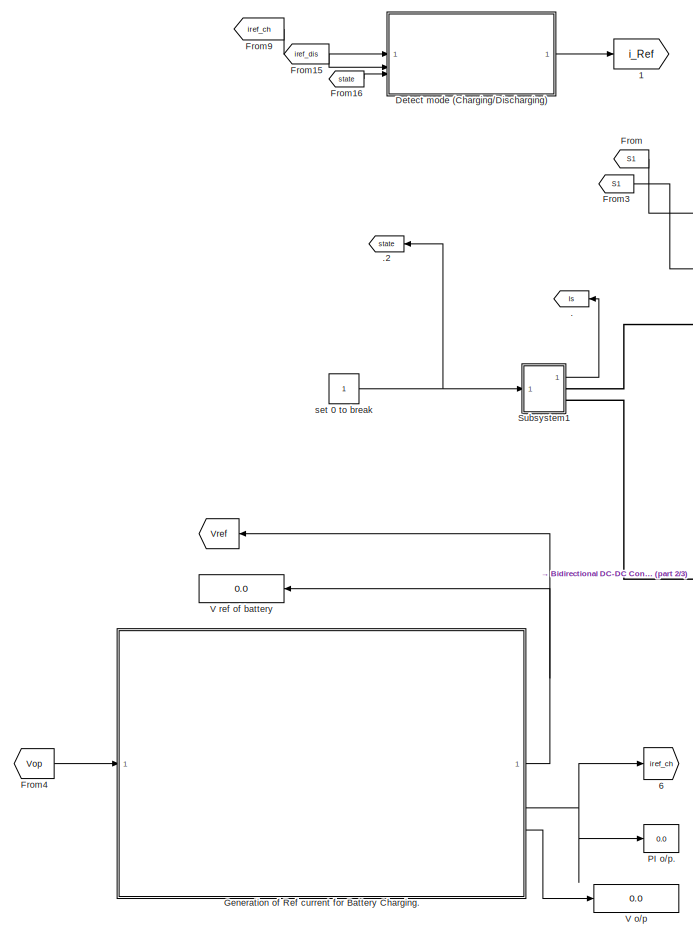
[diagram: root canvas - part 1/3, left side, full height]
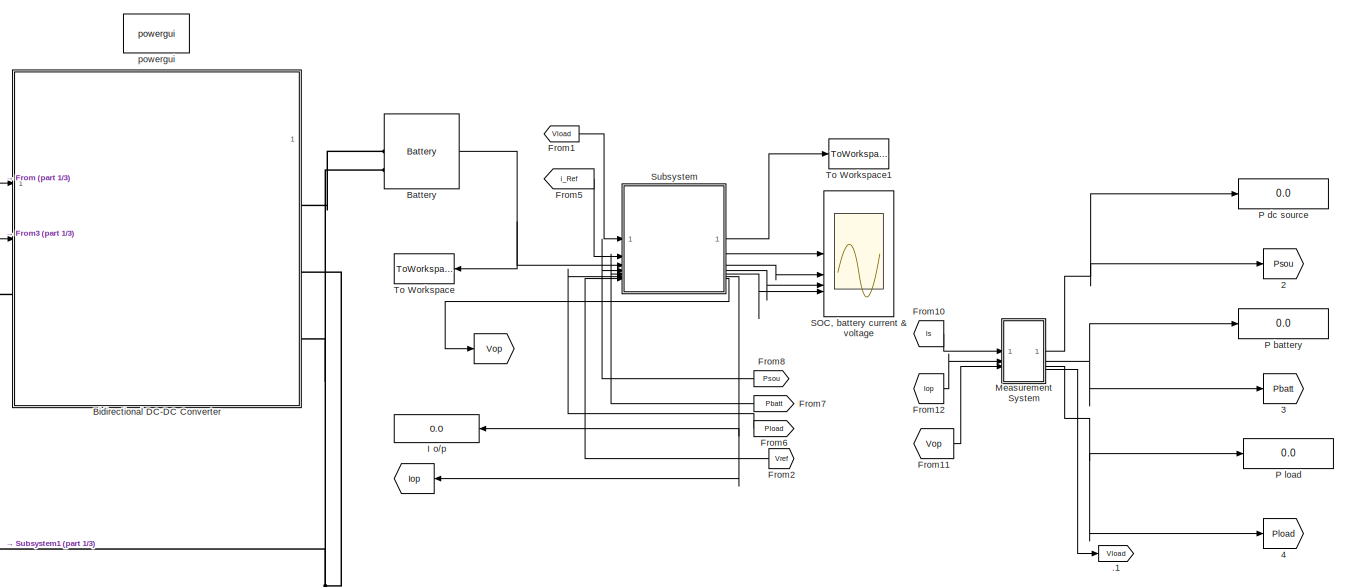
[diagram: root canvas - part 2/3, central region]
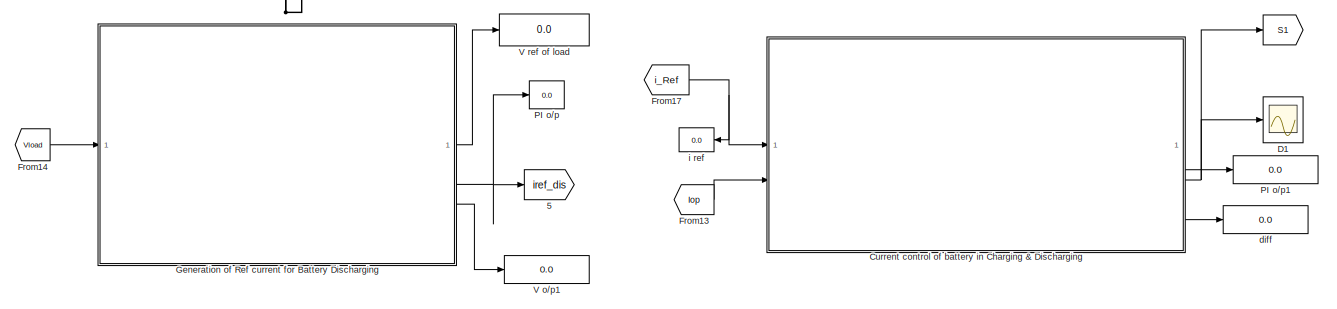
[diagram: root canvas - part 3/3, bottom right region]
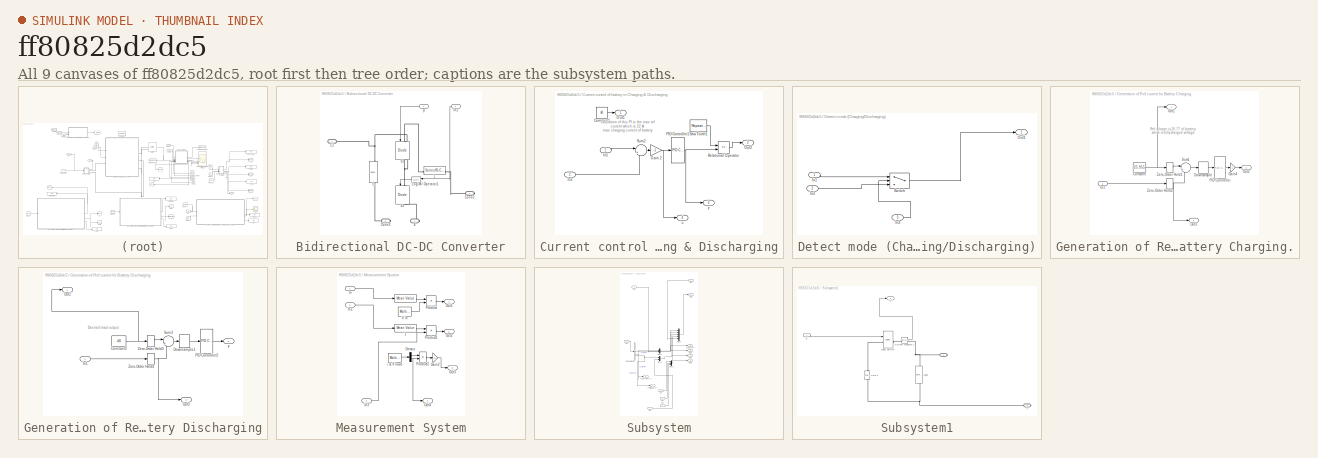
[diagram: thumbnail index - all 9 canvases of the model, root first then tree order]
MODEL slx_ff80825d2dc5
KIND model
CONFIG AbsTol = auto
CONFIG EnableMultiTasking = on
CONFIG FixedStep = 5e-6
CONFIG MaxStep = 50e-6
CONFIG MinStep = auto
CONFIG RelTol = 1e-4
CONFIG SampleTimeConstraint = Unconstrained
CONFIG SolverName = ode23s
CONFIG StartTime = 0.0
CONFIG StopTime = 10
WORKSPACE source: mxarray member
WORKSPACE Fs = 10000
WORKSPACE Fsw = 10000
BLOCK [Goto]     
  GotoTag = Vop
BLOCK [Goto]      
  GotoTag = Vref
BLOCK [Goto]          
  GotoTag = Iop
BLOCK [Goto]                                   
  GotoTag = S1
BLOCK [Goto]     1
  GotoTag = i_Ref
BLOCK [Goto]     2
  GotoTag = Psou
BLOCK [Goto]     3
  GotoTag = Pbatt
BLOCK [Goto]     4
  GotoTag = Pload
BLOCK [Goto]     5
  GotoTag = iref_dis
BLOCK [Goto]     6
  GotoTag = iref_ch
BLOCK [Scope]    D1
  ActiveDisplayYMaximum = 1.125
  ActiveDisplayYMinimum = -0.125
  DataLoggingDecimateData = on
  DataLoggingDecimation = 1
  DataLoggingSaveFormat = Array
  DataLoggingVariableName = VVI
  Floating = off
  GraphicalSettings = {"GraphicalSettings":{"LegacySettings":true,"Style":{"AxesScalingProperties":{"ScaleAxesLimitsAtStop":false},"Style":{"AxesColor":"[0 0 0]","ChannelNames":[""],"ColorOrder":"[1 1 0.0666666666666667;0.0745098039215686 0.623529411764706 1;1 0.411764705882353 0.16078431372549;0.392156862745098 0.831372549019608 0.0745098039215686;0.717647058823529 0.274509803921569 1;0.0588235294117647 1 1;1 0.074509...<+451ch>
  MultipleDisplayCache = [{"MaxYLimMag":1.125,"MaxYLimReal":1.125,"MinYLimMag":0,"MinYLimReal":-0.125,"PlotAsMagnitudePhase":false,"ShowGrid":true,"ShowLegend":false,"Title":"%<SignalLabel>","YLabel":""}]
  NumInputPorts = 1
  TimeSpan = 0.01960030745580332
  WasSavedAsWebScope = on
BLOCK [Goto] .
  GotoTag = Is
BLOCK [Goto] .1
  GotoTag = Vload
BLOCK [Goto] .2
  GotoTag = state
BLOCK [Reference] Battery  REF=spsBatteryLib/Battery
  LibrarySourceBlock = electricdrivelib/Extra Sources/Battery
  SourceBlock = spsBatteryLib/Battery
  SourceType = Battery
BLOCK [SubSystem] Bidirectional DC-DC Converter
BLOCK [Reference] Bidirectional DC-DC Converter/C  REF=spsSeriesRLCBranchLib/Series RLC Branch
  LibrarySourceBlock = sps_lib/Passives/Series RLC Branch
  NameLocation = left
  SourceBlock = spsSeriesRLCBranchLib/Series RLC Branch
  SourceType = Series RLC Branch
BLOCK [PMIOPort] Bidirectional DC-DC Converter/C1
  Side = Left
BLOCK [PMIOPort] Bidirectional DC-DC Converter/Conn2
  Port = 2
  Side = Right
BLOCK [PMIOPort] Bidirectional DC-DC Converter/Conn3
  Port = 3
  Side = Right
BLOCK [PMIOPort] Bidirectional DC-DC Converter/E
  Port = 4
  Side = Right
BLOCK [Inport] Bidirectional DC-DC Converter/In2
  Port = 2
BLOCK [Reference] Bidirectional DC-DC Converter/L  REF=spsSeriesRLCBranchLib/Series RLC Branch
  LibrarySourceBlock = sps_lib/Passives/Series RLC Branch
  SourceBlock = spsSeriesRLCBranchLib/Series RLC Branch
  SourceType = Series RLC Branch
BLOCK [Logic] Bidirectional DC-DC Converter/Logical Operator1
  AllPortsSameDT = off
  Operator = NOT
  OutDataTypeStr = boolean
BLOCK [Reference] Bidirectional DC-DC Converter/S1  REF=spsIGBTDiodeLib/IGBT//Diode
  LibrarySourceBlock = sps_lib/Power Electronics/IGBT//Diode
  NameLocation = left
  SourceBlock = spsIGBTDiodeLib/IGBT//Diode
  SourceType = IGBT/Diode
BLOCK [Reference] Bidirectional DC-DC Converter/S2  REF=spsIGBTDiodeLib/IGBT//Diode
  LibrarySourceBlock = sps_lib/Power Electronics/IGBT//Diode
  NameLocation = left
  SourceBlock = spsIGBTDiodeLib/IGBT//Diode
  SourceType = IGBT/Diode
BLOCK [Inport] Bidirectional DC-DC Converter/g
BLOCK [SubSystem] Current control of battery in Charging & Discharging
BLOCK [Constant] Current control of battery in Charging & Discharging/Constant1
  Value = 60
BLOCK [Gain] Current control of battery in Charging & Discharging/Gain 2
  Gain = -1
BLOCK [Inport] Current control of battery in Charging & Discharging/In1
BLOCK [Inport] Current control of battery in Charging & Discharging/In2
  Port = 2
BLOCK [Outport] Current control of battery in Charging & Discharging/Out1
BLOCK [Outport] Current control of battery in Charging & Discharging/Out2
  Port = 2
BLOCK [Reference] Current control of battery in Charging & Discharging/PID Controller1  REF=slpidlib/PID Controller
  SourceBlock = slpidlib/PID Controller
  SourceType = PID 1dof
BLOCK [RelationalOperator] Current control of battery in Charging & Discharging/Relational Operator
  InputSameDT = off
  Operator = <=
  OutDataTypeStr = boolean
  RndMeth = Simplest
BLOCK [Reference] Current control of battery in Charging & Discharging/Saw Tooth1  REF=simulink/Sources/Repeating
Sequence
  SourceBlock = simulink/Sources/Repeating\nSequence
  SourceType = Repeating table
BLOCK [Sum] Current control of battery in Charging & Discharging/Sum2
  Inputs = |+-
BLOCK [Outport] Current control of battery in Charging & Discharging/u
  Port = 4
BLOCK [Outport] Current control of battery in Charging & Discharging/y
  Port = 3
BLOCK [SubSystem] Detect mode (Charging//Discharging)
BLOCK [Inport] Detect mode (Charging//Discharging)/In1
BLOCK [Inport] Detect mode (Charging//Discharging)/In2
  Port = 2
BLOCK [Inport] Detect mode (Charging//Discharging)/In3
  Port = 3
BLOCK [Outport] Detect mode (Charging//Discharging)/Out1
BLOCK [Switch] Detect mode (Charging//Discharging)/Switch
  Criteria = u2 > Threshold
  InputSameDT = off
  SaturateOnIntegerOverflow = off
BLOCK [From] From
  GotoTag = S1
  NameLocation = top
BLOCK [From] From1
  GotoTag = Vload
  NameLocation = top
BLOCK [From] From10
  GotoTag = Is
BLOCK [From] From11
  GotoTag = Vop
BLOCK [From] From12
  GotoTag = Iop
BLOCK [From] From13
  GotoTag = Iop
BLOCK [From] From14
  GotoTag = Vload
BLOCK [From] From15
  GotoTag = iref_dis
BLOCK [From] From16
  GotoTag = state
BLOCK [From] From17
  GotoTag = i_Ref
BLOCK [From] From2
  GotoTag = Vref
BLOCK [From] From3
  GotoTag = S1
  NameLocation = top
BLOCK [From] From4
  GotoTag = Vop
BLOCK [From] From5
  GotoTag = i_Ref
BLOCK [From] From6
  GotoTag = Pload
BLOCK [From] From7
  GotoTag = Pbatt
BLOCK [From] From8
  GotoTag = Psou
BLOCK [From] From9
  GotoTag = iref_ch
BLOCK [SubSystem] Generation of Ref current for Battery Charging.
BLOCK [Constant] Generation of Ref current for Battery Charging./Constant
  Value = 25.955
BLOCK [DownSample] Generation of Ref current for Battery Charging./Downsample
  InputProcessing = Inherited (this choice will be removed - see release notes)
  N = Fs/Fsw
  RateOptions = Allow multirate processing
  UserDataPersistent = on
BLOCK [Gain] Generation of Ref current for Battery Charging./Gain4
  Gain = -1
BLOCK [Inport] Generation of Ref current for Battery Charging./In1
BLOCK [Outport] Generation of Ref current for Battery Charging./Out1
BLOCK [Outport] Generation of Ref current for Battery Charging./Out2
  Port = 2
BLOCK [Outport] Generation of Ref current for Battery Charging./Out3
  Port = 3
BLOCK [Reference] Generation of Ref current for Battery Charging./PID Controller  REF=slpidlib/PID Controller
  SourceBlock = slpidlib/PID Controller
  SourceType = PID 1dof
BLOCK [Sum] Generation of Ref current for Battery Charging./Sum1
  Inputs = |+-
BLOCK [ZeroOrderHold] Generation of Ref current for Battery Charging./Zero-Order Hold1
  SampleTime = 1/Fs
BLOCK [ZeroOrderHold] Generation of Ref current for Battery Charging./Zero-Order Hold2
  SampleTime = 1/Fs
BLOCK [SubSystem] Generation of Ref current for Battery Discharging
BLOCK [Constant] Generation of Ref current for Battery Discharging/Constant2
  Value = 48
BLOCK [DownSample] Generation of Ref current for Battery Discharging/Downsample1
  InputProcessing = Inherited (this choice will be removed - see release notes)
  N = Fs/Fsw
  RateOptions = Allow multirate processing
  UserDataPersistent = on
BLOCK [Inport] Generation of Ref current for Battery Discharging/In1
BLOCK [Outport] Generation of Ref current for Battery Discharging/Out1
BLOCK [Outport] Generation of Ref current for Battery Discharging/Out3
  Port = 3
BLOCK [Reference] Generation of Ref current for Battery Discharging/PID Controller2  REF=slpidlib/PID Controller
  SourceBlock = slpidlib/PID Controller
  SourceType = PID 1dof
BLOCK [Sum] Generation of Ref current for Battery Discharging/Sum3
  Inputs = |+-
BLOCK [ZeroOrderHold] Generation of Ref current for Battery Discharging/Zero-Order Hold3
  SampleTime = 1/Fs
BLOCK [ZeroOrderHold] Generation of Ref current for Battery Discharging/Zero-Order Hold4
  SampleTime = 1/Fs
BLOCK [Outport] Generation of Ref current for Battery Discharging/y
  Port = 2
BLOCK [Display] I o//p
  Decimation = 1
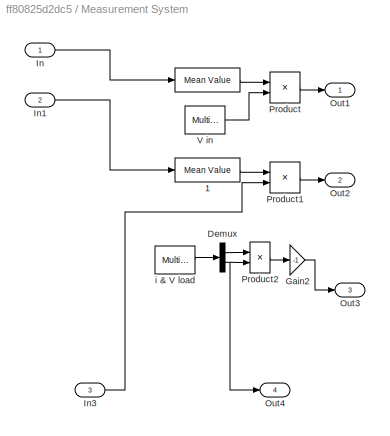
BLOCK [SubSystem] Measurement System
BLOCK [Reference] Measurement System/     REF=powerlib_extras/Measurements/Mean Value
  SourceBlock = powerlib_extras/Measurements/Mean Value
  SourceType = Mean value
BLOCK [Reference] Measurement System/   1  REF=powerlib_extras/Measurements/Mean Value
  SourceBlock = powerlib_extras/Measurements/Mean Value
  SourceType = Mean value
BLOCK [Demux] Measurement System/Demux
  Outputs = 2
BLOCK [Gain] Measurement System/Gain2
  Gain = -1
BLOCK [Inport] Measurement System/In
BLOCK [Inport] Measurement System/In1
  Port = 2
BLOCK [Inport] Measurement System/In3
  Port = 3
BLOCK [Outport] Measurement System/Out1
BLOCK [Outport] Measurement System/Out2
  Port = 2
BLOCK [Outport] Measurement System/Out3
  Port = 3
BLOCK [Outport] Measurement System/Out4
  Port = 4
BLOCK [Product] Measurement System/Product
BLOCK [Product] Measurement System/Product1
BLOCK [Product] Measurement System/Product2
BLOCK [Reference] Measurement System/V in  REF=spsMultimeterLib/Multimeter
  LibrarySourceBlock = sps_lib/Sensors and Measurements/Multimeter
  SourceBlock = spsMultimeterLib/Multimeter
  SourceType = Multimeter
BLOCK [Reference] Measurement System/i & V load  REF=spsMultimeterLib/Multimeter
  LibrarySourceBlock = sps_lib/Sensors and Measurements/Multimeter
  SourceBlock = spsMultimeterLib/Multimeter
  SourceType = Multimeter
BLOCK [Display] P battery
  Decimation = 1
BLOCK [Display] P dc source
  Decimation = 1
BLOCK [Display] P load
  Decimation = 1
BLOCK [Display] PI o//p
  Decimation = 1
BLOCK [Display] PI o//p.
  Decimation = 1
BLOCK [Display] PI o//p1
  Decimation = 1
BLOCK [Scope] SOC, battery current & voltage
  ActiveDisplayYMaximum = 46.866915196882822
  ActiveDisplayYMinimum = 46.623431864713254
  DataLoggingSaveFormat = Structure With Time
  DataLoggingVariableName = Soc_Ibatt_Vbatt
  Floating = off
  GraphicalSettings = {"AxesScalingProperties":{"AlignXAxis":"Center","AlignYAxis":"Center","AutoScaleXAxisLimits":false,"AxesScaling":"Manual","AxesScalingNumUpdates":10,"ExpandOnly":true,"ScaleAxesLimitsAtStop":false,"XAxisDataRange":100,"YAxisDataRange":80},"Cursors":{"CursorChannels":["auto","auto"],"Enabled":false,"Horizontal":true,"LinkToWaveform":true,"LockSpacing":false,"ShowMeasurement":true,"ShowPanel":false,...<+4358ch>
  LayoutDimensionsString = [2 2]
  MultipleDisplayCache = [{"MaxYLimMag":46.810190417000548,"MaxYLimReal":46.866915196882822,"MinYLimMag":46.793392629972324,"MinYLimReal":46.623431864713254,"PlotAsMagnitudePhase":false,"ShowGrid":true,"ShowLegend":false,"Title":"%<SignalLabel>","YLabel":""},{"MaxYLimMag":50.5108911681071,"MaxYLimReal":53.356101556310733,"MinYLimMag":0,"MinYLimReal":-44.14121191449145,"PlotAsMagnitudePhase":false,"ShowGrid":true,"ShowLege...<+513ch>
  NumInputPorts = 4
  SampleTime = 1/Fs
  ScopeFrameLocation = window
  Visible = on
  WasSavedAsWebScope = on
  WindowPosition = [560.000000,315.000000,560.000000,420.000000,]
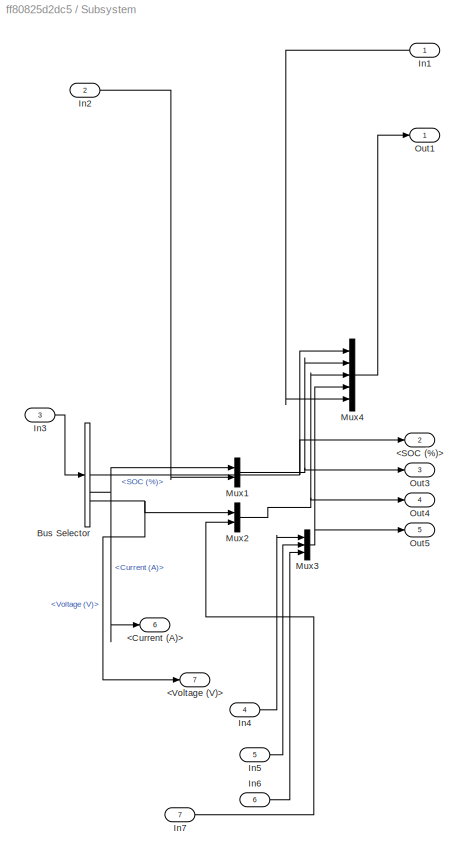
BLOCK [SubSystem] Subsystem
BLOCK [Outport] Subsystem/<Current (A)>
  Port = 6
BLOCK [Outport] Subsystem/<SOC (%)>
  Port = 2
BLOCK [Outport] Subsystem/<Voltage (V)>
  Port = 7
BLOCK [BusSelector] Subsystem/Bus Selector
  OutputSignals = SOC (%),Current (A),Voltage (V)
BLOCK [Inport] Subsystem/In1
BLOCK [Inport] Subsystem/In2
  Port = 2
BLOCK [Inport] Subsystem/In3
  Port = 3
BLOCK [Inport] Subsystem/In4
  Port = 4
BLOCK [Inport] Subsystem/In5
  Port = 5
BLOCK [Inport] Subsystem/In6
  Port = 6
BLOCK [Inport] Subsystem/In7
  Port = 7
BLOCK [Mux] Subsystem/Mux1
  DisplayOption = bar
  Inputs = 2
BLOCK [Mux] Subsystem/Mux2
  DisplayOption = bar
  Inputs = 2
BLOCK [Mux] Subsystem/Mux3
  DisplayOption = bar
  Inputs = 3
BLOCK [Mux] Subsystem/Mux4
  DisplayOption = bar
  Inputs = 5
BLOCK [Outport] Subsystem/Out1
BLOCK [Outport] Subsystem/Out3
  Port = 3
BLOCK [Outport] Subsystem/Out4
  Port = 4
BLOCK [Outport] Subsystem/Out5
  Port = 5
BLOCK [SubSystem] Subsystem1
BLOCK [PMIOPort] Subsystem1/-
  Side = Right
BLOCK [PMIOPort] Subsystem1/-1
  Port = 2
  Side = Right
BLOCK [Reference] Subsystem1/Current Measure 1  REF=spsCurrentMeasurementLib/Current Measurement
  LibrarySourceBlock = sps_lib/Sensors and Measurements/Current Measurement
  SourceBlock = spsCurrentMeasurementLib/Current Measurement
  SourceType = Current Measurement
BLOCK [Reference] Subsystem1/Ideal Switch  REF=spsIdealSwitchLib/Ideal Switch
  LibrarySourceBlock = sps_lib/Power Electronics/Ideal Switch
  SourceBlock = spsIdealSwitchLib/Ideal Switch
  SourceType = Ideal Switch
BLOCK [Reference] Subsystem1/Load  REF=spsSeriesRLCBranchLib/Series RLC Branch
  LibrarySourceBlock = sps_lib/Passives/Series RLC Branch
  NameLocation = left
  SourceBlock = spsSeriesRLCBranchLib/Series RLC Branch
  SourceType = Series RLC Branch
BLOCK [Reference] Subsystem1/V DC1  REF=spsDCVoltageSourceLib/DC Voltage Source
  LibrarySourceBlock = sps_lib/Sources/DC Voltage Source
  NameLocation = right
  SourceBlock = spsDCVoltageSourceLib/DC Voltage Source
  SourceType = DC Voltage Source
BLOCK [Inport] Subsystem1/g
BLOCK [Outport] Subsystem1/i
BLOCK [ToWorkspace] To Workspace
  FixptAsFi = on
  MaxDataPoints = inf
  SampleTime = -1
  VariableName = Soc_Ibatt_Vbatt_
BLOCK [ToWorkspace] To Workspace1
  FixptAsFi = on
  MaxDataPoints = inf
  SampleTime = -1
  VariableName = Soc_Ibatt_Vbatt_Power_loadVolt
BLOCK [Display] V o//p
  Decimation = 1
BLOCK [Display] V o//p1
  Decimation = 1
BLOCK [Display] V ref of battery 
  Decimation = 1
BLOCK [Display] V ref of load
  Decimation = 1
BLOCK [Display] diff
  Decimation = 1
BLOCK [Display] i ref
  Decimation = 1
BLOCK [Reference] powergui  REF=spspowerguiLib/powergui
  Priority = 1
  SourceBlock = spspowerguiLib/powergui
  SourceType = PSB option menu block
BLOCK [Constant] set 0 to break
ANNOTATION Current control of battery in Charging & Discharging: saturation of this PI is the max ref current which is 22 A max charging current of battery
ANNOTATION Generation of Ref current for Battery Charging.: Ref voltage is 26.77 of battery which is fully charged voltage
ANNOTATION Generation of Ref current for Battery Discharging: Desired load output
NET Battery:1 -> Subsystem:3, To Workspace:1
LINE Bidirectional DC-DC Converter/In2:1 -> Bidirectional DC-DC Converter/Logical Operator1:1
LINE Bidirectional DC-DC Converter/Logical Operator1:1 -> Bidirectional DC-DC Converter/S2:1
LINE Bidirectional DC-DC Converter/g:1 -> Bidirectional DC-DC Converter/S1:1
LINE Current control of battery in Charging & Discharging/Constant1:1 -> Current control of battery in Charging & Discharging/Out1:1
NET Current control of battery in Charging & Discharging/Gain 2:1 -> Current control of battery in Charging & Discharging/PID Controller1:1, Current control of battery in Charging & Discharging/u:1
LINE Current control of battery in Charging & Discharging/In1:1 -> Current control of battery in Charging & Discharging/Sum2:1
LINE Current control of battery in Charging & Discharging/In2:1 -> Current control of battery in Charging & Discharging/Sum2:2
NET Current control of battery in Charging & Discharging/PID Controller1:1 -> Current control of battery in Charging & Discharging/Relational Operator:2, Current control of battery in Charging & Discharging/y:1
LINE Current control of battery in Charging & Discharging/Relational Operator:1 -> Current control of battery in Charging & Discharging/Out2:1
LINE Current control of battery in Charging & Discharging/Saw Tooth1:1 -> Current control of battery in Charging & Discharging/Relational Operator:1
LINE Current control of battery in Charging & Discharging/Sum2:1 -> Current control of battery in Charging & Discharging/Gain 2:1
NET Current control of battery in Charging & Discharging:2 ->                                   :1,    D1:1
LINE Current control of battery in Charging & Discharging:3 -> PI o//p1:1
LINE Current control of battery in Charging & Discharging:4 -> diff:1
LINE Detect mode (Charging//Discharging)/In1:1 -> Detect mode (Charging//Discharging)/Switch:1
LINE Detect mode (Charging//Discharging)/In2:1 -> Detect mode (Charging//Discharging)/Switch:3
LINE Detect mode (Charging//Discharging)/In3:1 -> Detect mode (Charging//Discharging)/Switch:2
LINE Detect mode (Charging//Discharging)/Switch:1 -> Detect mode (Charging//Discharging)/Out1:1
LINE Detect mode (Charging//Discharging):1 ->     1:1
LINE From10:1 -> Measurement System:1
LINE From11:1 -> Measurement System:3
LINE From12:1 -> Measurement System:2
LINE From13:1 -> Current control of battery in Charging & Discharging:2
LINE From14:1 -> Generation of Ref current for Battery Discharging:1
LINE From15:1 -> Detect mode (Charging//Discharging):2
LINE From16:1 -> Detect mode (Charging//Discharging):3
NET From17:1 -> Current control of battery in Charging & Discharging:1, i ref:1
LINE From1:1 -> Subsystem:1
LINE From2:1 -> Subsystem:7
LINE From3:1 -> Bidirectional DC-DC Converter:2
LINE From4:1 -> Generation of Ref current for Battery Charging.:1
LINE From5:1 -> Subsystem:2
LINE From6:1 -> Subsystem:6
LINE From7:1 -> Subsystem:5
LINE From8:1 -> Subsystem:4
LINE From9:1 -> Detect mode (Charging//Discharging):1
LINE From:1 -> Bidirectional DC-DC Converter:1
NET Generation of Ref current for Battery Charging./Constant:1 -> Generation of Ref current for Battery Charging./Out1:1, Generation of Ref current for Battery Charging./Zero-Order Hold1:1
LINE Generation of Ref current for Battery Charging./Downsample:1 -> Generation of Ref current for Battery Charging./PID Controller:1
LINE Generation of Ref current for Battery Charging./Gain4:1 -> Generation of Ref current for Battery Charging./Out2:1
LINE Generation of Ref current for Battery Charging./In1:1 -> Generation of Ref current for Battery Charging./Zero-Order Hold2:1
LINE Generation of Ref current for Battery Charging./PID Controller:1 -> Generation of Ref current for Battery Charging./Gain4:1
LINE Generation of Ref current for Battery Charging./Sum1:1 -> Generation of Ref current for Battery Charging./Downsample:1
LINE Generation of Ref current for Battery Charging./Zero-Order Hold1:1 -> Generation of Ref current for Battery Charging./Sum1:1
NET Generation of Ref current for Battery Charging./Zero-Order Hold2:1 -> Generation of Ref current for Battery Charging./Out3:1, Generation of Ref current for Battery Charging./Sum1:2
NET Generation of Ref current for Battery Charging.:1 ->      :1, V ref of battery :1
NET Generation of Ref current for Battery Charging.:2 ->     6:1, PI o//p.:1
LINE Generation of Ref current for Battery Charging.:3 -> V o//p:1
NET Generation of Ref current for Battery Discharging/Constant2:1 -> Generation of Ref current for Battery Discharging/Out1:1, Generation of Ref current for Battery Discharging/Zero-Order Hold3:1
LINE Generation of Ref current for Battery Discharging/Downsample1:1 -> Generation of Ref current for Battery Discharging/PID Controller2:1
LINE Generation of Ref current for Battery Discharging/In1:1 -> Generation of Ref current for Battery Discharging/Zero-Order Hold4:1
LINE Generation of Ref current for Battery Discharging/PID Controller2:1 -> Generation of Ref current for Battery Discharging/y:1
LINE Generation of Ref current for Battery Discharging/Sum3:1 -> Generation of Ref current for Battery Discharging/Downsample1:1
LINE Generation of Ref current for Battery Discharging/Zero-Order Hold3:1 -> Generation of Ref current for Battery Discharging/Sum3:1
NET Generation of Ref current for Battery Discharging/Zero-Order Hold4:1 -> Generation of Ref current for Battery Discharging/Out3:1, Generation of Ref current for Battery Discharging/Sum3:2
LINE Generation of Ref current for Battery Discharging:1 -> V ref of load:1
NET Generation of Ref current for Battery Discharging:2 ->     5:1, PI o//p:1
LINE Generation of Ref current for Battery Discharging:3 -> V o//p1:1
LINE Measurement System/   1:1 -> Measurement System/Product1:1
LINE Measurement System/   :1 -> Measurement System/Product:1
LINE Measurement System/Demux:1 -> Measurement System/Product2:1
NET Measurement System/Demux:2 -> Measurement System/Out4:1, Measurement System/Product2:2
LINE Measurement System/Gain2:1 -> Measurement System/Out3:1
LINE Measurement System/In1:1 -> Measurement System/   1:1
LINE Measurement System/In3:1 -> Measurement System/Product1:2
LINE Measurement System/In:1 -> Measurement System/   :1
LINE Measurement System/Product1:1 -> Measurement System/Out2:1
LINE Measurement System/Product2:1 -> Measurement System/Gain2:1
LINE Measurement System/Product:1 -> Measurement System/Out1:1
LINE Measurement System/V in:1 -> Measurement System/Product:2
LINE Measurement System/i & V load:1 -> Measurement System/Demux:1
NET Measurement System:1 ->     2:1, P dc source:1
NET Measurement System:2 ->     3:1, P battery:1
NET Measurement System:3 ->     4:1, P load:1
LINE Measurement System:4 -> .1:1
NET Subsystem/Bus Selector:1 -> Subsystem/<SOC (%)>:1, Subsystem/Mux4:1
NET Subsystem/Bus Selector:2 -> Subsystem/<Current (A)>:1, Subsystem/Mux1:1
NET Subsystem/Bus Selector:3 -> Subsystem/<Voltage (V)>:1, Subsystem/Mux2:1
LINE Subsystem/In1:1 -> Subsystem/Mux4:5
LINE Subsystem/In2:1 -> Subsystem/Mux1:2
LINE Subsystem/In3:1 -> Subsystem/Bus Selector:1
LINE Subsystem/In4:1 -> Subsystem/Mux3:1
LINE Subsystem/In5:1 -> Subsystem/Mux3:2
LINE Subsystem/In6:1 -> Subsystem/Mux3:3
LINE Subsystem/In7:1 -> Subsystem/Mux2:2
NET Subsystem/Mux1:1 -> Subsystem/Mux4:2, Subsystem/Out3:1
NET Subsystem/Mux2:1 -> Subsystem/Mux4:3, Subsystem/Out4:1
NET Subsystem/Mux3:1 -> Subsystem/Mux4:4, Subsystem/Out5:1
LINE Subsystem/Mux4:1 -> Subsystem/Out1:1
LINE Subsystem1/Current Measure 1:1 -> Subsystem1/i:1
LINE Subsystem1/g:1 -> Subsystem1/Ideal Switch:1
LINE Subsystem1:1 -> .:1
LINE Subsystem:1 -> To Workspace1:1
LINE Subsystem:2 -> SOC, battery current & voltage:1
LINE Subsystem:3 -> SOC, battery current & voltage:2
LINE Subsystem:4 -> SOC, battery current & voltage:3
LINE Subsystem:5 -> SOC, battery current & voltage:4
NET Subsystem:6 ->          :1, I o//p:1
LINE Subsystem:7 ->     :1
NET set 0 to break:1 -> .2:1, Subsystem1:1
PLINE Battery:LConn1 -- Bidirectional DC-DC Converter:RConn1
PNET net1: Battery:LConn2 -- Bidirectional DC-DC Converter:RConn2 -- Bidirectional DC-DC Converter:RConn3 -- Subsystem1:RConn2
PNET net2: Bidirectional DC-DC Converter/C1:RConn1 -- Bidirectional DC-DC Converter/C:LConn1 -- Bidirectional DC-DC Converter/S1:LConn1
PLINE Bidirectional DC-DC Converter/C:RConn1 -- Bidirectional DC-DC Converter/Conn3:RConn1
PLINE Bidirectional DC-DC Converter/Conn2:RConn1 -- Bidirectional DC-DC Converter/L:RConn1
PLINE Bidirectional DC-DC Converter/E:RConn1 -- Bidirectional DC-DC Converter/S2:RConn1
PNET net3: Bidirectional DC-DC Converter/L:LConn1 -- Bidirectional DC-DC Converter/S1:RConn1 -- Bidirectional DC-DC Converter/S2:LConn1
PLINE Bidirectional DC-DC Converter:LConn1 -- Subsystem1:RConn1
PNET net4: Subsystem1/-1:RConn1 -- Subsystem1/Load:RConn1 -- Subsystem1/V DC1:LConn1
PNET net5: Subsystem1/-:RConn1 -- Subsystem1/Current Measure 1:RConn1 -- Subsystem1/Load:LConn1
PLINE Subsystem1/Current Measure 1:LConn1 -- Subsystem1/Ideal Switch:RConn1
PLINE Subsystem1/Ideal Switch:LConn1 -- Subsystem1/V DC1:RConn1
note: NET lines group one-source signal fan-out (src -> all destinations, sorted); 1:1 wires keep LINE; PNET lines group multi-terminal physical nets as a canonical sorted terminal list (undirected conserving connections); 2-terminal nets keep the pairwise PLINE form
